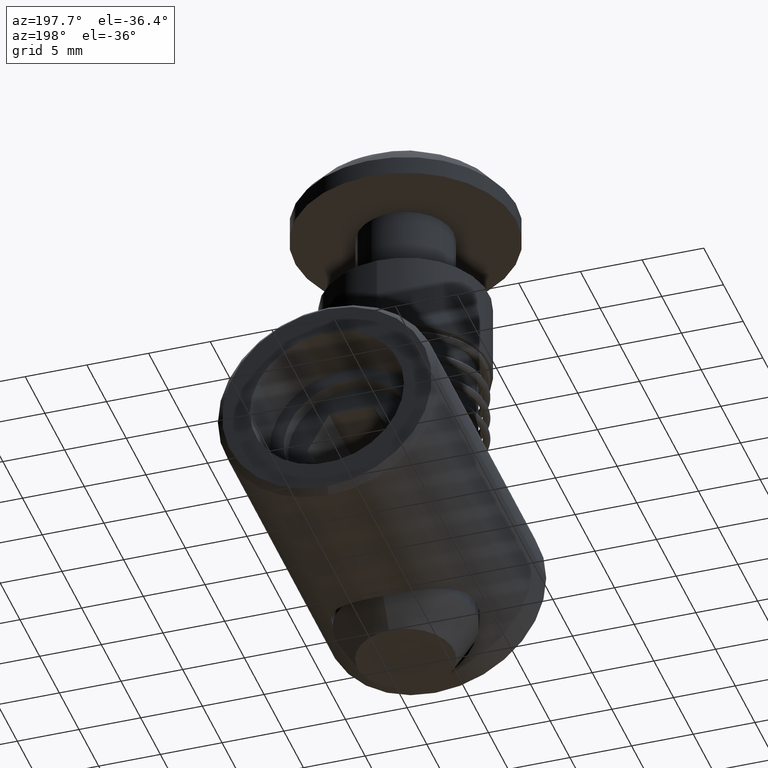
[diagram: clean part render]
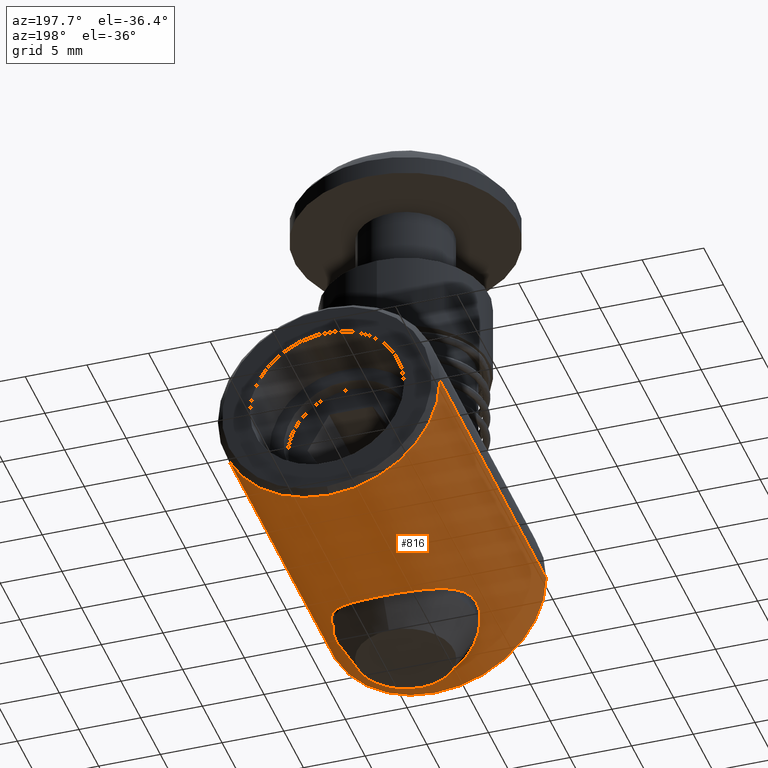
[diagram: same view with one face highlighted and labeled with its STEP entity id]
A machine part, auxiliary view. The second image highlights one B-rep face of the part: STEP entity #816.
In plain terms, the highlighted cylindrical surface (partial cylindrical patch) has radius 9 mm, axis along (0, -1, 0).
Its self-contained STEP definition (entity closure, byte-faithful):
#75 = VERTEX_POINT ( 'NONE', #214 ) ;
#214 = CARTESIAN_POINT ( 'NONE',  ( -9.000000000000001800, 0.0000000000000000000, -0.5000000000000004400 ) ) ;
#816 = ADVANCED_FACE ( 'NONE', ( #1278, #1279 ), #1280, .T. ) ;
#870 = EDGE_LOOP ( 'NONE', ( #1331, #1300, #1302, #1301, #1303 ) ) ;
#871 = EDGE_LOOP ( 'NONE', ( #1304, #1305 ) ) ;
#1278 = FACE_OUTER_BOUND ( 'NONE', #870, .T. ) ;
#1279 = FACE_BOUND ( 'NONE', #871, .T. ) ;
#1280 = CYLINDRICAL_SURFACE ( 'NONE', #2820, 9.000000000000001800 ) ;
#1300 = ORIENTED_EDGE ( 'NONE', *, *, #3142, .T. ) ;
#1301 = ORIENTED_EDGE ( 'NONE', *, *, #3163, .T. ) ;
#1302 = ORIENTED_EDGE ( 'NONE', *, *, #3170, .T. ) ;
#1303 = ORIENTED_EDGE ( 'NONE', *, *, #3150, .F. ) ;
#1304 = ORIENTED_EDGE ( 'NONE', *, *, #3199, .F. ) ;
#1305 = ORIENTED_EDGE ( 'NONE', *, *, #3149, .F. ) ;
#1331 = ORIENTED_EDGE ( 'NONE', *, *, #3165, .F. ) ;
#1427 = B_SPLINE_CURVE_WITH_KNOTS ( 'NONE', 3,
 ( #2393, #2394, #2395, #2396, #2397, #2398, #2399, #2400, #2401, #2402, #2403, #2404, #2405, #2406, #2407, #2408, #2409, #2410, #2411, #2412, #2413, #2414, #2415, #2416, #2417, #2418, #2419, #2420, #2421, #2422, #2423, #2424, #2425, #2426, #2427, #2428, #2429, #2430, #2431, #2432 ),
 .UNSPECIFIED., .F., .F.,
 ( 4, 2, 2, 2, 2, 2, 2, 2, 2, 2, 2, 2, 2, 2, 2, 2, 2, 2, 2, 4 ),
 ( 0.02776516757010279500, 0.02892142436900560800, 0.02949955276845701200, 0.03007768116790841800, 0.03123393796681123200, 0.03239019476571404500, 0.03354645156461685100, 0.03412457996406825800, 0.03470270836351966500, 0.03585896516242247800, 0.03701522196132529100, 0.03817147876022810400, 0.03932773555913092500, 0.04048399235803373800, 0.04164024915693655100, 0.04279650595583936500, 0.04395276275474217800, 0.04510901955364499100, 0.04568714795309639100, 0.04626527635254780400 ),
 .UNSPECIFIED. ) ;
#1444 = B_SPLINE_CURVE_WITH_KNOTS ( 'NONE', 3,
 ( #2648, #2649, #2650, #2651, #2652, #2653, #2654, #2655, #2656, #2657, #2658, #2659, #2660, #2661, #2662, #2663, #2664, #2665, #2666, #2667, #2668, #2669, #2670, #2671, #2672, #2673, #2674, #2675, #2676, #2677, #2678, #2679, #2680, #2681, #2682, #2683, #2684, #2685 ),
 .UNSPECIFIED., .F., .F.,
 ( 4, 2, 2, 2, 2, 2, 2, 2, 2, 2, 2, 2, 2, 2, 2, 2, 2, 2, 4 ),
 ( 0.009265083107851243900, 0.01042133838674196900, 0.01099946602618732900, 0.01157759366563269200, 0.01273384894452341300, 0.01389010422341413500, 0.01504635950230485600, 0.01620261478119557800, 0.01735887006008629900, 0.01851512533897702000, 0.01967138061786774200, 0.02082763589675846300, 0.02198389117564918500, 0.02314014645453990600, 0.02429640173343062700, 0.02545265701232134900, 0.02660891229121207400, 0.02718703993065742900, 0.02776516757010279200 ),
 .UNSPECIFIED. ) ;
#1901 = CARTESIAN_POINT ( 'NONE',  ( 0.0000000000000000000, 0.0000000000000000000, -27.50000000000000000 ) ) ;
#1902 = DIRECTION ( 'NONE',  ( 0.0000000000000000000, -0.0000000000000000000, 1.000000000000000000 ) ) ;
#1903 = DIRECTION ( 'NONE',  ( 1.000000000000000000, 0.0000000000000000000, 0.0000000000000000000 ) ) ;
#2194 = CIRCLE ( 'NONE', #2863, 9.000000000000001800 ) ;
#2203 = CIRCLE ( 'NONE', #2869, 9.000000000000001800 ) ;
#2219 = LINE ( 'NONE', #2477, #2221 ) ;
#2221 = VECTOR ( 'NONE', #2478, 1000.000000000000000 ) ;
#2222 = LINE ( 'NONE', #2482, #2224 ) ;
#2224 = VECTOR ( 'NONE', #2483, 1000.000000000000000 ) ;
#2228 = CIRCLE ( 'NONE', #2879, 9.000000000000001800 ) ;
#2314 = CARTESIAN_POINT ( 'NONE',  ( -5.750000000000020400, -6.923691212063244100, -8.000000000000222000 ) ) ;
#2316 = CARTESIAN_POINT ( 'NONE',  ( 0.0000000000000000000, -8.999999999999925400, -27.50000000000007800 ) ) ;
#2345 = CARTESIAN_POINT ( 'NONE',  ( -9.000000000000001800, 1.102182119232617900E-015, -27.50000000000007800 ) ) ;
#2350 = CARTESIAN_POINT ( 'NONE',  ( 5.750000000000020400, -6.923691212063243200, -7.999999999999778000 ) ) ;
#2351 = CARTESIAN_POINT ( 'NONE',  ( 9.000000000000001800, 0.0000000000000000000, -27.50000000000000000 ) ) ;
#2355 = CARTESIAN_POINT ( 'NONE',  ( 9.000000000000001800, 1.102182119232617900E-015, -0.5000000000000004400 ) ) ;
#2373 = CARTESIAN_POINT ( 'NONE',  ( 0.0000000000000000000, 0.0000000000000000000, -27.50000000000007800 ) ) ;
#2374 = DIRECTION ( 'NONE',  ( 0.0000000000000000000, 0.0000000000000000000, 1.000000000000000000 ) ) ;
#2375 = DIRECTION ( 'NONE',  ( 1.000000000000000000, 0.0000000000000000000, 8.866364432770346100E-015 ) ) ;
#2393 = CARTESIAN_POINT ( 'NONE',  ( 5.750000000000020400, -6.923691212063243200, -7.999999999999778000 ) ) ;
#2394 = CARTESIAN_POINT ( 'NONE',  ( 5.749999999999984000, -6.923691212063131300, -7.610169456414375600 ) ) ;
#2395 = CARTESIAN_POINT ( 'NONE',  ( 5.710781152506024600, -6.956776865852282800, -7.226813639080698500 ) ) ;
#2396 = CARTESIAN_POINT ( 'NONE',  ( 5.595182198980565700, -7.049565773399091700, -6.660776049219764500 ) ) ;
#2397 = CARTESIAN_POINT ( 'NONE',  ( 5.546986073288968200, -7.087735736820217600, -6.473755888476924600 ) ) ;
#2398 = CARTESIAN_POINT ( 'NONE',  ( 5.434346324531039100, -7.174463910099214900, -6.111520291272210400 ) ) ;
#2399 = CARTESIAN_POINT ( 'NONE',  ( 5.369683566615135500, -7.223198198198320900, -5.935067537681935500 ) ) ;
#2400 = CARTESIAN_POINT ( 'NONE',  ( 5.151482483259724400, -7.382046023210400600, -5.418427040985572600 ) ) ;
#2401 = CARTESIAN_POINT ( 'NONE',  ( 4.972417891917967100, -7.505558240666528200, -5.089354251251771500 ) ) ;
#2402 = CARTESIAN_POINT ( 'NONE',  ( 4.562675707255284200, -7.761464719131669900, -4.481649710873782100 ) ) ;
#2403 = CARTESIAN_POINT ( 'NONE',  ( 4.331113764107114700, -7.894717010302359000, -4.200042800653623200 ) ) ;
#2404 = CARTESIAN_POINT ( 'NONE',  ( 3.810763592635793500, -8.158626351993152800, -3.678391272275566100 ) ) ;
#2405 = CARTESIAN_POINT ( 'NONE',  ( 3.528214210151915200, -8.286014577903309000, -3.444850499100459800 ) ) ;
#2406 = CARTESIAN_POINT ( 'NONE',  ( 3.071538480547919600, -8.461219453305735900, -3.135645265343080600 ) ) ;
#2407 = CARTESIAN_POINT ( 'NONE',  ( 2.913672551755991200, -8.517050370004989500, -3.039370284932269200 ) ) ;
#2408 = CARTESIAN_POINT ( 'NONE',  ( 2.585840829468384300, -8.622242280794052900, -2.860859788493460300 ) ) ;
#2409 = CARTESIAN_POINT ( 'NONE',  ( 2.414895220280415300, -8.671851008834211800, -2.778222213367370900 ) ) ;
#2410 = CARTESIAN_POINT ( 'NONE',  ( 1.889316178023193300, -8.806892741305999200, -2.555946997771570800 ) ) ;
#2411 = CARTESIAN_POINT ( 'NONE',  ( 1.525781545431639000, -8.877891226767859600, -2.442751099980975800 ) ) ;
#2412 = CARTESIAN_POINT ( 'NONE',  ( 0.7705259995805523500, -8.975034910387359200, -2.288842994181230100 ) ) ;
#2413 = CARTESIAN_POINT ( 'NONE',  ( 0.3761272695180222800, -9.000650943862446200, -2.248981129199420600 ) ) ;
#2414 = CARTESIAN_POINT ( 'NONE',  ( -0.4066592796141029200, -8.999323161573361300, -2.251059401465067100 ) ) ;
#2415 = CARTESIAN_POINT ( 'NONE',  ( -0.7895982670433828700, -8.973273108938732500, -2.291606743773928000 ) ) ;
#2416 = CARTESIAN_POINT ( 'NONE',  ( -1.539796279693233600, -8.875366084165982300, -2.446780536653707200 ) ) ;
#2417 = CARTESIAN_POINT ( 'NONE',  ( -1.909891613766437900, -8.802280701183621000, -2.563419231256689000 ) ) ;
#2418 = CARTESIAN_POINT ( 'NONE',  ( -2.602132312757572000, -8.623035367297747600, -2.858696288069735700 ) ) ;
#2419 = CARTESIAN_POINT ( 'NONE',  ( -2.928636361391186800, -8.516561805704046900, -3.037725964877192800 ) ) ;
#2420 = CARTESIAN_POINT ( 'NONE',  ( -3.544024545435052500, -8.279409758490846400, -3.456767168824550900 ) ) ;
#2421 = CARTESIAN_POINT ( 'NONE',  ( -3.824538237947054900, -8.152037125376267600, -3.690945551635844300 ) ) ;
#2422 = CARTESIAN_POINT ( 'NONE',  ( -4.337478308007243700, -7.891076222835432800, -4.207728266585750300 ) ) ;
#2423 = CARTESIAN_POINT ( 'NONE',  ( -4.571604050040886800, -7.756161915809554100, -4.493390552859256800 ) ) ;
#2424 = CARTESIAN_POINT ( 'NONE',  ( -4.978513908180850000, -7.501467224527119400, -5.099952988109191800 ) ) ;
#2425 = CARTESIAN_POINT ( 'NONE',  ( -5.152725501652071200, -7.381150739511286800, -5.421235022396556900 ) ) ;
#2426 = CARTESIAN_POINT ( 'NONE',  ( -5.441807889414081800, -7.170682898404743700, -6.105973653879036800 ) ) ;
#2427 = CARTESIAN_POINT ( 'NONE',  ( -5.556752164145113900, -7.080405208719870600, -6.473300104076521700 ) ) ;
#2428 = CARTESIAN_POINT ( 'NONE',  ( -5.671565579223387700, -6.988258153067775400, -7.034445404415413900 ) ) ;
#2429 = CARTESIAN_POINT ( 'NONE',  ( -5.700684486537009700, -6.964398216675760100, -7.224059649545640800 ) ) ;
#2430 = CARTESIAN_POINT ( 'NONE',  ( -5.739933090969334000, -6.932085851075088500, -7.608777360442701400 ) ) ;
#2431 = CARTESIAN_POINT ( 'NONE',  ( -5.750000000000008900, -6.923691212063109100, -7.805381190612918000 ) ) ;
#2432 = CARTESIAN_POINT ( 'NONE',  ( -5.750000000000020400, -6.923691212063244100, -8.000000000000222000 ) ) ;
#2433 = CARTESIAN_POINT ( 'NONE',  ( 0.0000000000000000000, 0.0000000000000000000, -0.5000000000000004400 ) ) ;
#2434 = DIRECTION ( 'NONE',  ( 0.0000000000000000000, 0.0000000000000000000, 1.000000000000000000 ) ) ;
#2435 = DIRECTION ( 'NONE',  ( 1.000000000000000000, 0.0000000000000000000, 4.818676322157796400E-017 ) ) ;
#2477 = CARTESIAN_POINT ( 'NONE',  ( 9.000000000000001800, 0.0000000000000000000, -27.50000000000000000 ) ) ;
#2478 = DIRECTION ( 'NONE',  ( 0.0000000000000000000, -0.0000000000000000000, 1.000000000000000000 ) ) ;
#2482 = CARTESIAN_POINT ( 'NONE',  ( -9.000000000000001800, 1.102182119232617900E-015, -27.50000000000000000 ) ) ;
#2483 = DIRECTION ( 'NONE',  ( 0.0000000000000000000, -0.0000000000000000000, 1.000000000000000000 ) ) ;
#2567 = CARTESIAN_POINT ( 'NONE',  ( 0.0000000000000000000, 0.0000000000000000000, -27.50000000000007800 ) ) ;
#2568 = DIRECTION ( 'NONE',  ( 0.0000000000000000000, 0.0000000000000000000, 1.000000000000000000 ) ) ;
#2569 = DIRECTION ( 'NONE',  ( 1.000000000000000000, 0.0000000000000000000, 8.866364432770346100E-015 ) ) ;
#2648 = CARTESIAN_POINT ( 'NONE',  ( -5.750000000000020400, -6.923691212063244100, -8.000000000000222000 ) ) ;
#2649 = CARTESIAN_POINT ( 'NONE',  ( -5.749999999999984000, -6.923691212063128700, -8.389237107084126100 ) ) ;
#2650 = CARTESIAN_POINT ( 'NONE',  ( -5.710899199592650400, -6.956675766700529500, -8.772019096761839700 ) ) ;
#2651 = CARTESIAN_POINT ( 'NONE',  ( -5.595650703088977300, -7.049192865622733200, -9.337222493618046600 ) ) ;
#2652 = CARTESIAN_POINT ( 'NONE',  ( -5.547595063891628300, -7.087257098034230700, -9.523995408551337900 ) ) ;
#2653 = CARTESIAN_POINT ( 'NONE',  ( -5.435279523108084400, -7.173754991093111300, -9.885764965175226800 ) ) ;
#2654 = CARTESIAN_POINT ( 'NONE',  ( -5.370802110800234200, -7.222363473588665700, -10.06199649495121500 ) ) ;
#2655 = CARTESIAN_POINT ( 'NONE',  ( -5.153228685502552000, -7.380815127540426300, -10.57800573102216300 ) ) ;
#2656 = CARTESIAN_POINT ( 'NONE',  ( -4.974664572670502800, -7.504049944782808600, -10.90673808360025600 ) ) ;
#2657 = CARTESIAN_POINT ( 'NONE',  ( -4.566039374117044000, -7.759467611788240400, -11.51392918699962900 ) ) ;
#2658 = CARTESIAN_POINT ( 'NONE',  ( -4.335115082448549400, -7.892492787561208100, -11.79533084971553500 ) ) ;
#2659 = CARTESIAN_POINT ( 'NONE',  ( -3.816261340334692300, -8.156029337983371300, -12.31670110375298700 ) ) ;
#2660 = CARTESIAN_POINT ( 'NONE',  ( -3.534354911212234100, -8.283367219987697500, -12.55033717466497800 ) ) ;
#2661 = CARTESIAN_POINT ( 'NONE',  ( -2.927068563551150900, -8.516930595223103100, -12.96281197163651600 ) ) ;
#2662 = CARTESIAN_POINT ( 'NONE',  ( -2.598910472846688100, -8.624154161018120500, -13.14319694741507200 ) ) ;
#2663 = CARTESIAN_POINT ( 'NONE',  ( -1.899689352567629900, -8.804632360446373000, -13.44040355575880100 ) ) ;
#2664 = CARTESIAN_POINT ( 'NONE',  ( -1.536971427685454700, -8.875925779915759200, -13.55411415065447800 ) ) ;
#2665 = CARTESIAN_POINT ( 'NONE',  ( -0.7834705671629425000, -8.973879511698607200, -13.70934663848773200 ) ) ;
#2666 = CARTESIAN_POINT ( 'NONE',  ( -0.3912316639640637300, -9.000042025248815100, -13.75006577865086400 ) ) ;
#2667 = CARTESIAN_POINT ( 'NONE',  ( 0.3931628014991818100, -8.999957871159738300, -13.74993405920599300 ) ) ;
#2668 = CARTESIAN_POINT ( 'NONE',  ( 0.7768670185218813400, -8.974412974277580400, -13.71017923880210900 ) ) ;
#2669 = CARTESIAN_POINT ( 'NONE',  ( 1.528544601686907800, -8.877339804130665300, -13.55636758182605400 ) ) ;
#2670 = CARTESIAN_POINT ( 'NONE',  ( 1.899510830123815300, -8.804560111167289100, -13.44026378769940800 ) ) ;
#2671 = CARTESIAN_POINT ( 'NONE',  ( 2.593538670244008000, -8.625658079872216900, -13.14569418440895300 ) ) ;
#2672 = CARTESIAN_POINT ( 'NONE',  ( 2.920719043016030800, -8.519313016238124100, -12.96699062956870400 ) ) ;
#2673 = CARTESIAN_POINT ( 'NONE',  ( 3.537883158854783400, -8.282069593475563700, -12.54807414151874500 ) ) ;
#2674 = CARTESIAN_POINT ( 'NONE',  ( 3.819164085219143500, -8.154580473184070800, -12.31386488714060300 ) ) ;
#2675 = CARTESIAN_POINT ( 'NONE',  ( 4.333478821719688200, -7.893298315987414600, -11.79689424082886100 ) ) ;
#2676 = CARTESIAN_POINT ( 'NONE',  ( 4.568234566268260200, -7.758166475780615000, -11.51105706230166700 ) ) ;
#2677 = CARTESIAN_POINT ( 'NONE',  ( 4.976305901123311900, -7.502952332037009100, -10.90390570191799200 ) ) ;
#2678 = CARTESIAN_POINT ( 'NONE',  ( 5.151001369823998900, -7.382365568784262400, -10.58228160113869400 ) ) ;
#2679 = CARTESIAN_POINT ( 'NONE',  ( 5.440890480929098800, -7.171390888637656500, -9.896761491079786300 ) ) ;
#2680 = CARTESIAN_POINT ( 'NONE',  ( 5.556173980997333400, -7.080862944137871700, -9.528945957068168900 ) ) ;
#2681 = CARTESIAN_POINT ( 'NONE',  ( 5.671330056349863600, -6.988450309413154900, -8.966993616126474700 ) ) ;
#2682 = CARTESIAN_POINT ( 'NONE',  ( 5.700535917591687400, -6.964520102511446700, -8.777103017031452100 ) ) ;
#2683 = CARTESIAN_POINT ( 'NONE',  ( 5.739902320610180000, -6.932111608730259000, -8.391816534472658500 ) ) ;
#2684 = CARTESIAN_POINT ( 'NONE',  ( 5.750000000000008900, -6.923691212063110000, -8.194915015557374000 ) ) ;
#2685 = CARTESIAN_POINT ( 'NONE',  ( 5.750000000000020400, -6.923691212063243200, -7.999999999999778000 ) ) ;
#2820 = AXIS2_PLACEMENT_3D ( 'NONE', #1901, #1902, #1903 ) ;
#2863 = AXIS2_PLACEMENT_3D ( 'NONE', #2373, #2374, #2375 ) ;
#2869 = AXIS2_PLACEMENT_3D ( 'NONE', #2433, #2434, #2435 ) ;
#2879 = AXIS2_PLACEMENT_3D ( 'NONE', #2567, #2568, #2569 ) ;
#2904 = VERTEX_POINT ( 'NONE', #2314 ) ;
#2906 = VERTEX_POINT ( 'NONE', #2316 ) ;
#3116 = VERTEX_POINT ( 'NONE', #2345 ) ;
#3121 = VERTEX_POINT ( 'NONE', #2350 ) ;
#3122 = VERTEX_POINT ( 'NONE', #2351 ) ;
#3126 = VERTEX_POINT ( 'NONE', #2355 ) ;
#3142 = EDGE_CURVE ( 'NONE', #3116, #2906, #2194, .T. ) ;
#3149 = EDGE_CURVE ( 'NONE', #3121, #2904, #1427, .T. ) ;
#3150 = EDGE_CURVE ( 'NONE', #75, #3126, #2203, .T. ) ;
#3163 = EDGE_CURVE ( 'NONE', #3122, #3126, #2219, .T. ) ;
#3165 = EDGE_CURVE ( 'NONE', #3116, #75, #2222, .T. ) ;
#3170 = EDGE_CURVE ( 'NONE', #2906, #3122, #2228, .T. ) ;
#3199 = EDGE_CURVE ( 'NONE', #2904, #3121, #1444, .T. ) ;